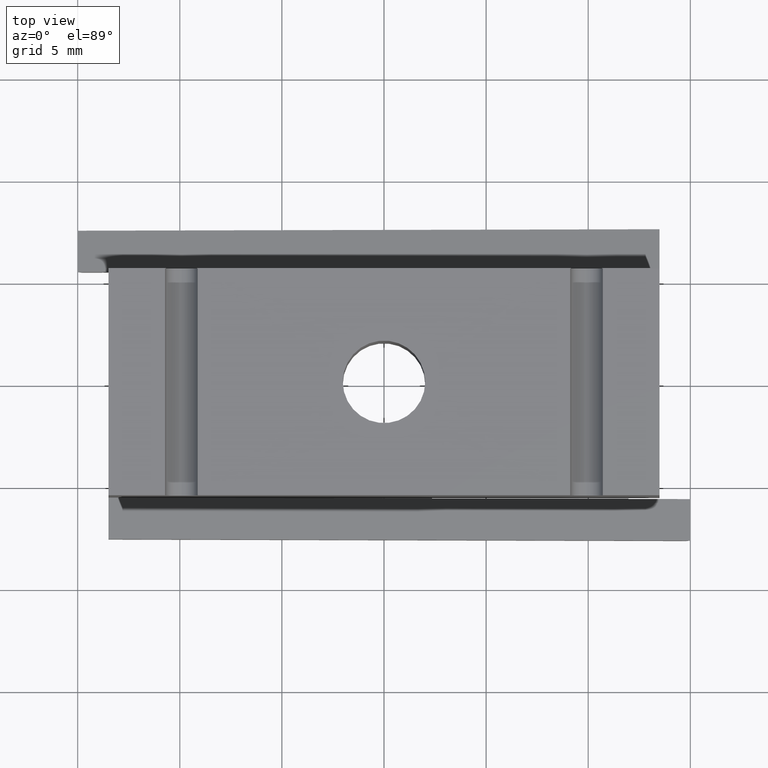
[diagram: clean part render]
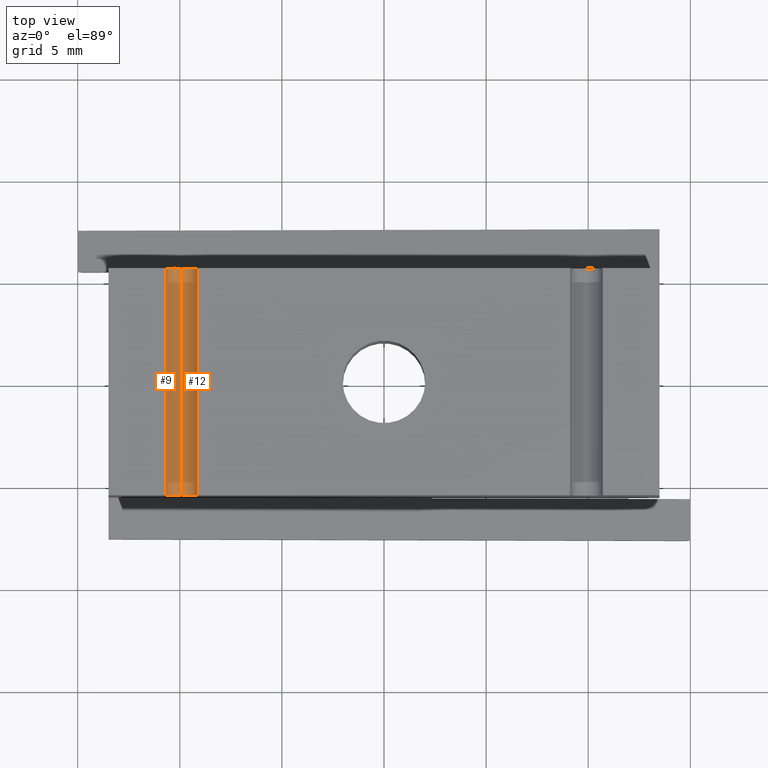
[diagram: same view with one multi-face feature highlighted, each face labeled with its STEP entity id]
A machine part, top view. The highlighted faces form ONE feature: a constant-radius fillet chain: 2 tangent blend faces with common blend radius 0.7937 mm. The faces share edges in the B-rep.
Their STEP definitions:
[1] entity #9 (Cylinder):
#9 = ADVANCED_FACE ( 'NONE', ( #832 ), #189, .F. ) ;
#125 = ORIENTED_EDGE ( 'NONE', *, *, #707, .T. ) ;
#133 = ORIENTED_EDGE ( 'NONE', *, *, #693, .F. ) ;
#134 = ORIENTED_EDGE ( 'NONE', *, *, #696, .T. ) ;
#136 = ORIENTED_EDGE ( 'NONE', *, *, #684, .T. ) ;
#189 = CYLINDRICAL_SURFACE ( 'NONE', #719, 0.03124999999999997900 ) ;
#206 = EDGE_LOOP ( 'NONE', ( #133, #134, #136, #125 ) ) ;
#252 = VERTEX_POINT ( 'NONE', #375 ) ;
#254 = VERTEX_POINT ( 'NONE', #367 ) ;
#268 = VERTEX_POINT ( 'NONE', #396 ) ;
#280 = VERTEX_POINT ( 'NONE', #408 ) ;
#307 = DIRECTION ( 'NONE',  ( 0.0000000000000000000, 0.0000000000000000000, -1.000000000000000000 ) ) ;
#311 = CARTESIAN_POINT ( 'NONE',  ( -0.3906250000000000000, 0.2187509842519684800, 0.0000000000000000000 ) ) ;
#312 = DIRECTION ( 'NONE',  ( -0.0000000000000000000, -1.000000000000000000, -0.0000000000000000000 ) ) ;
#367 = CARTESIAN_POINT ( 'NONE',  ( -0.3906250000000000000, -0.2187499999999999400, -0.03124999999999997900 ) ) ;
#375 = CARTESIAN_POINT ( 'NONE',  ( -0.3906250000000000000, 0.2187500000000000300, -0.03124999999999997900 ) ) ;
#396 = CARTESIAN_POINT ( 'NONE',  ( -0.4218750000000000000, -0.2187499999999999400, 0.0000000000000000000 ) ) ;
#408 = CARTESIAN_POINT ( 'NONE',  ( -0.4218750000000000000, 0.2187500000000000300, 0.0000000000000000000 ) ) ;
#491 = CARTESIAN_POINT ( 'NONE',  ( -0.4218750000000000000, 0.2187509842519684800, 0.0000000000000000000 ) ) ;
#492 = DIRECTION ( 'NONE',  ( -0.0000000000000000000, -1.000000000000000000, -0.0000000000000000000 ) ) ;
#502 = CARTESIAN_POINT ( 'NONE',  ( -0.3906250000000000000, 0.2187500000000000300, 0.0000000000000000000 ) ) ;
#512 = CARTESIAN_POINT ( 'NONE',  ( -0.3906250000000000000, 0.2187509842519684800, -0.03124999999999997900 ) ) ;
#513 = DIRECTION ( 'NONE',  ( -0.0000000000000000000, -1.000000000000000000, -0.0000000000000000000 ) ) ;
#519 = DIRECTION ( 'NONE',  ( 0.0000000000000000000, 1.000000000000000000, 0.0000000000000000000 ) ) ;
#520 = DIRECTION ( 'NONE',  ( 0.0000000000000000000, 0.0000000000000000000, 1.000000000000000000 ) ) ;
#521 = CARTESIAN_POINT ( 'NONE',  ( -0.3906250000000000000, -0.2187499999999999400, 0.0000000000000000000 ) ) ;
#538 = DIRECTION ( 'NONE',  ( 0.0000000000000000000, -1.000000000000000000, 0.0000000000000000000 ) ) ;
#539 = DIRECTION ( 'NONE',  ( 0.0000000000000000000, 0.0000000000000000000, -1.000000000000000000 ) ) ;
#620 = LINE ( 'NONE', #512, #621 ) ;
#621 = VECTOR ( 'NONE', #513, 39.37007874015748100 ) ;
#628 = CIRCLE ( 'NONE', #734, 0.03124999999999997900 ) ;
#641 = CIRCLE ( 'NONE', #697, 0.03124999999999997900 ) ;
#684 = EDGE_CURVE ( 'NONE', #280, #268, #796, .T. ) ;
#693 = EDGE_CURVE ( 'NONE', #252, #254, #620, .T. ) ;
#696 = EDGE_CURVE ( 'NONE', #252, #280, #628, .T. ) ;
#697 = AXIS2_PLACEMENT_3D ( 'NONE', #521, #538, #539 ) ;
#707 = EDGE_CURVE ( 'NONE', #268, #254, #641, .T. ) ;
#719 = AXIS2_PLACEMENT_3D ( 'NONE', #311, #312, #307 ) ;
#734 = AXIS2_PLACEMENT_3D ( 'NONE', #502, #519, #520 ) ;
#796 = LINE ( 'NONE', #491, #797 ) ;
#797 = VECTOR ( 'NONE', #492, 39.37007874015748100 ) ;
#832 = FACE_OUTER_BOUND ( 'NONE', #206, .T. ) ;
[2] entity #12 (Cylinder):
#12 = ADVANCED_FACE ( 'NONE', ( #43 ), #48, .F. ) ;
#43 = FACE_OUTER_BOUND ( 'NONE', #611, .T. ) ;
#48 = CYLINDRICAL_SURFACE ( 'NONE', #708, 0.03124999999999997900 ) ;
#78 = ORIENTED_EDGE ( 'NONE', *, *, #693, .T. ) ;
#85 = ORIENTED_EDGE ( 'NONE', *, *, #698, .T. ) ;
#86 = ORIENTED_EDGE ( 'NONE', *, *, #650, .T. ) ;
#89 = ORIENTED_EDGE ( 'NONE', *, *, #738, .T. ) ;
#212 = LINE ( 'NONE', #553, #213 ) ;
#213 = VECTOR ( 'NONE', #554, 39.37007874015748100 ) ;
#251 = VERTEX_POINT ( 'NONE', #382 ) ;
#252 = VERTEX_POINT ( 'NONE', #375 ) ;
#253 = VERTEX_POINT ( 'NONE', #383 ) ;
#254 = VERTEX_POINT ( 'NONE', #367 ) ;
#322 = DIRECTION ( 'NONE',  ( 0.0000000000000000000, 0.0000000000000000000, -1.000000000000000000 ) ) ;
#324 = DIRECTION ( 'NONE',  ( -0.0000000000000000000, -1.000000000000000000, -0.0000000000000000000 ) ) ;
#325 = CARTESIAN_POINT ( 'NONE',  ( -0.3906250000000000000, 0.2187509842519684800, 0.0000000000000000000 ) ) ;
#367 = CARTESIAN_POINT ( 'NONE',  ( -0.3906250000000000000, -0.2187499999999999400, -0.03124999999999997900 ) ) ;
#375 = CARTESIAN_POINT ( 'NONE',  ( -0.3906250000000000000, 0.2187500000000000300, -0.03124999999999997900 ) ) ;
#382 = CARTESIAN_POINT ( 'NONE',  ( -0.3593750000000000600, 0.2187500000000000300, 0.0000000000000000000 ) ) ;
#383 = CARTESIAN_POINT ( 'NONE',  ( -0.3593750000000000600, -0.2187499999999999400, 0.0000000000000000000 ) ) ;
#423 = CARTESIAN_POINT ( 'NONE',  ( -0.3906250000000000000, -0.2187499999999999400, 0.0000000000000000000 ) ) ;
#424 = DIRECTION ( 'NONE',  ( 0.0000000000000000000, -1.000000000000000000, 0.0000000000000000000 ) ) ;
#425 = DIRECTION ( 'NONE',  ( 0.0000000000000000000, 0.0000000000000000000, -1.000000000000000000 ) ) ;
#507 = CARTESIAN_POINT ( 'NONE',  ( -0.3906250000000000000, 0.2187500000000000300, 0.0000000000000000000 ) ) ;
#512 = CARTESIAN_POINT ( 'NONE',  ( -0.3906250000000000000, 0.2187509842519684800, -0.03124999999999997900 ) ) ;
#513 = DIRECTION ( 'NONE',  ( -0.0000000000000000000, -1.000000000000000000, -0.0000000000000000000 ) ) ;
#522 = DIRECTION ( 'NONE',  ( 0.0000000000000000000, 1.000000000000000000, 0.0000000000000000000 ) ) ;
#523 = DIRECTION ( 'NONE',  ( 0.0000000000000000000, 0.0000000000000000000, 1.000000000000000000 ) ) ;
#553 = CARTESIAN_POINT ( 'NONE',  ( -0.3593750000000000600, 0.2187509842519684800, 0.0000000000000000000 ) ) ;
#554 = DIRECTION ( 'NONE',  ( 0.0000000000000000000, 1.000000000000000000, 0.0000000000000000000 ) ) ;
#611 = EDGE_LOOP ( 'NONE', ( #85, #78, #86, #89 ) ) ;
#620 = LINE ( 'NONE', #512, #621 ) ;
#621 = VECTOR ( 'NONE', #513, 39.37007874015748100 ) ;
#630 = CIRCLE ( 'NONE', #677, 0.03124999999999997900 ) ;
#650 = EDGE_CURVE ( 'NONE', #254, #253, #818, .T. ) ;
#677 = AXIS2_PLACEMENT_3D ( 'NONE', #507, #522, #523 ) ;
#693 = EDGE_CURVE ( 'NONE', #252, #254, #620, .T. ) ;
#698 = EDGE_CURVE ( 'NONE', #251, #252, #630, .T. ) ;
#708 = AXIS2_PLACEMENT_3D ( 'NONE', #325, #324, #322 ) ;
#711 = AXIS2_PLACEMENT_3D ( 'NONE', #423, #424, #425 ) ;
#738 = EDGE_CURVE ( 'NONE', #253, #251, #212, .T. ) ;
#818 = CIRCLE ( 'NONE', #711, 0.03124999999999997900 ) ;